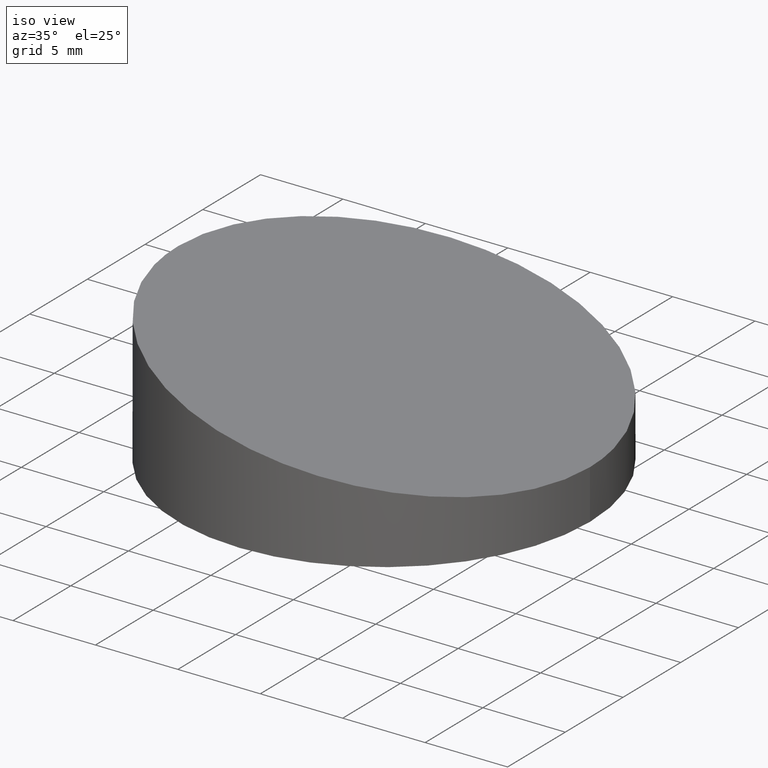
[diagram: clean part render]
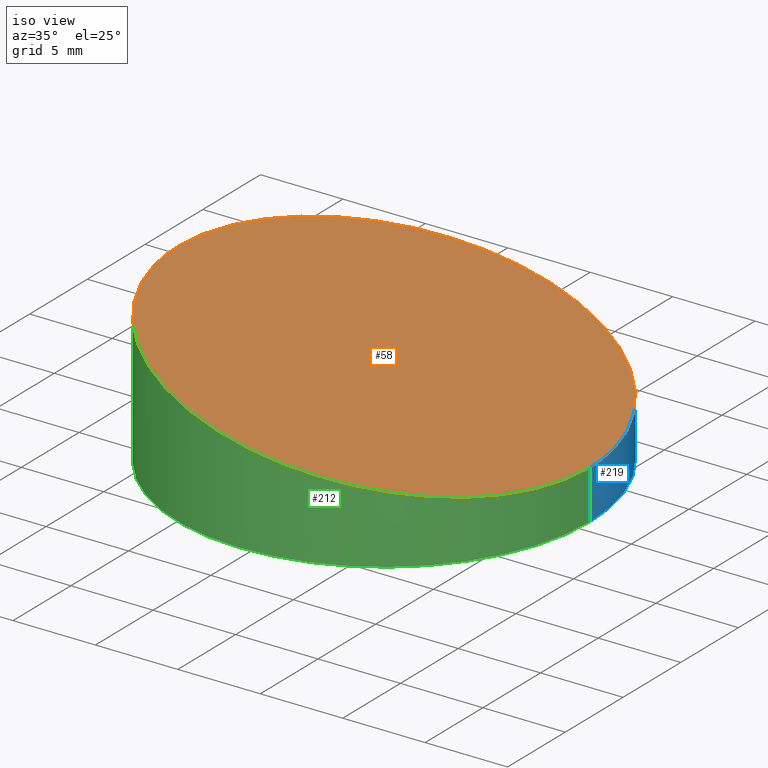
[diagram: same view with three faces highlighted in distinct colors, each labeled with its STEP entity id]
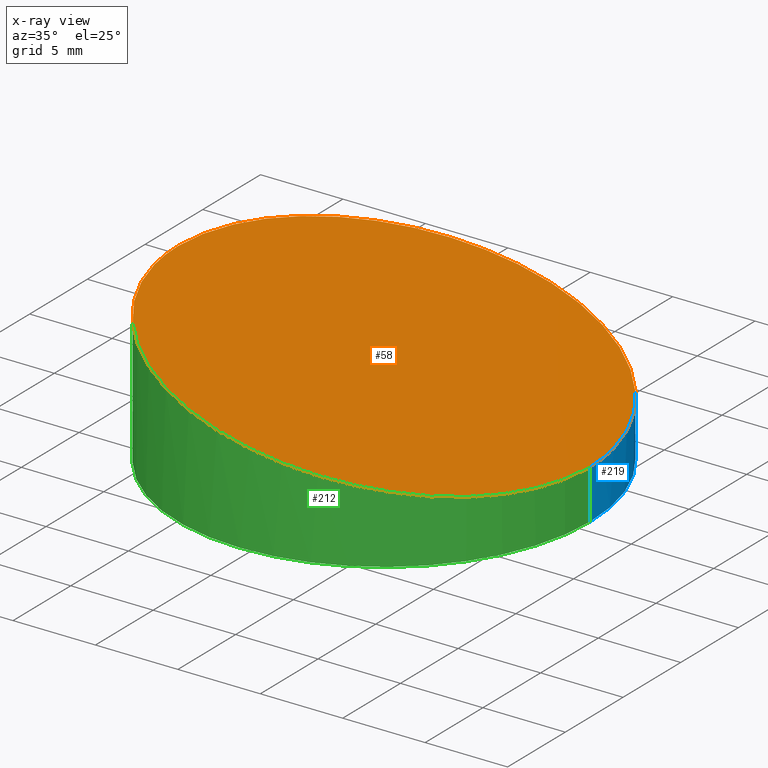
[diagram: x-ray of the same camera — body ghosted, the three highlighted faces saturated]
A machine part, iso view with three faces highlighted in distinct colors.
The next image is the same camera in x-ray (body ghosted, the three faces saturated) — at least one of them is partly hidden behind the body in this view.
Their STEP definitions:

[orange] entity #58 — the highlighted planar face has unit normal (-0.2122, 0, -0.9772).
#14 = DIRECTION ( 'NONE',  ( -0.2121776721564465600, 0.0000000000000000000, -0.9772311064626788600 ) ) ;
#16 = FACE_OUTER_BOUND ( 'NONE', #145, .T. ) ;
#30 = PLANE ( 'NONE',  #183 ) ;
#58 = ADVANCED_FACE ( 'NONE', ( #16 ), #30, .F. ) ;
#73 = CARTESIAN_POINT ( 'NONE',  ( -12.49999999999999600, 0.0000000000000000000, 8.428032088654909200 ) ) ;
#75 = CARTESIAN_POINT ( 'NONE',  ( -12.50000000000000500, 25.00000000000000000, 8.428032088654910900 ) ) ;
#77 = CARTESIAN_POINT ( 'NONE',  ( -12.49999999999999600, 0.0000000000000000000, 8.428032088654909200 ) ) ;
#95 = CARTESIAN_POINT ( 'NONE',  ( 12.49999999999999600, 1.530808498934191100E-015, 3.000000000000000000 ) ) ;
#120 = CARTESIAN_POINT ( 'NONE',  ( 12.49999999999999600, -25.00000000000000000, 3.000000000000000000 ) ) ;
#127 = VERTEX_POINT ( 'NONE', #175 ) ;
#137 = DIRECTION ( 'NONE',  ( -0.9772311064626787400, 0.0000000000000000000, 0.2121776721564465300 ) ) ;
#145 = EDGE_LOOP ( 'NONE', ( #248, #163 ) ) ;
#148 = EDGE_CURVE ( 'NONE', #173, #127, #198, .T. ) ;
#154 = CARTESIAN_POINT ( 'NONE',  ( -12.49999999999999600, 0.0000000000000000000, 8.428032088654909200 ) ) ;
#163 = ORIENTED_EDGE ( 'NONE', *, *, #210, .F. ) ;
#173 = VERTEX_POINT ( 'NONE', #154 ) ;
#175 = CARTESIAN_POINT ( 'NONE',  ( 12.49999999999999600, 1.530808498934191100E-015, 3.000000000000000000 ) ) ;
#183 = AXIS2_PLACEMENT_3D ( 'NONE', #120, #14, #137 ) ;
#197 = CARTESIAN_POINT ( 'NONE',  ( 12.50000000000000000, -25.00000000000000000, 3.000000000000000400 ) ) ;
#198 =( BOUNDED_CURVE ( )  B_SPLINE_CURVE ( 3, ( #73, #75, #251, #95 ),
 .UNSPECIFIED., .F., .F. ) 
 B_SPLINE_CURVE_WITH_KNOTS ( ( 4, 4 ),
 ( 3.141592653589793100, 6.283185307179586200 ),
 .UNSPECIFIED. ) 
 CURVE ( )  GEOMETRIC_REPRESENTATION_ITEM ( )  RATIONAL_B_SPLINE_CURVE ( ( 1.000000000000000000, 0.3333333333333333700, 0.3333333333333333700, 1.000000000000000000 ) ) 
 REPRESENTATION_ITEM ( '' )  );
#201 = CARTESIAN_POINT ( 'NONE',  ( -12.50000000000000000, -25.00000000000000000, 8.428032088654910900 ) ) ;
#210 = EDGE_CURVE ( 'NONE', #127, #173, #230, .T. ) ;
#214 = CARTESIAN_POINT ( 'NONE',  ( 12.49999999999999600, 1.530808498934191100E-015, 3.000000000000000000 ) ) ;
#230 =( BOUNDED_CURVE ( )  B_SPLINE_CURVE ( 3, ( #214, #197, #201, #77 ),
 .UNSPECIFIED., .F., .F. ) 
 B_SPLINE_CURVE_WITH_KNOTS ( ( 4, 4 ),
 ( 0.0000000000000000000, 3.141592653589793100 ),
 .UNSPECIFIED. ) 
 CURVE ( )  GEOMETRIC_REPRESENTATION_ITEM ( )  RATIONAL_B_SPLINE_CURVE ( ( 1.000000000000000000, 0.3333333333333333700, 0.3333333333333333700, 1.000000000000000000 ) ) 
 REPRESENTATION_ITEM ( '' )  );
#248 = ORIENTED_EDGE ( 'NONE', *, *, #148, .F. ) ;
#251 = CARTESIAN_POINT ( 'NONE',  ( 12.50000000000000000, 25.00000000000000000, 3.000000000000000400 ) ) ;

[blue] entity #219 — the highlighted cylindrical surface (partial cylindrical patch) has radius 12.5 mm, axis along (-0, -0, -1).
#17 = CARTESIAN_POINT ( 'NONE',  ( 12.49999999999999600, 1.530808498934191100E-015, 0.0000000000000000000 ) ) ;
#23 = CARTESIAN_POINT ( 'NONE',  ( 12.49999999999999600, 1.530808498934191100E-015, 10.00000000000000000 ) ) ;
#24 = VECTOR ( 'NONE', #67, 1000.000000000000000 ) ;
#26 = LINE ( 'NONE', #171, #79 ) ;
#33 = CYLINDRICAL_SURFACE ( 'NONE', #102, 12.49999999999999600 ) ;
#36 = LINE ( 'NONE', #23, #24 ) ;
#57 = CARTESIAN_POINT ( 'NONE',  ( 0.0000000000000000000, 0.0000000000000000000, 0.0000000000000000000 ) ) ;
#62 = DIRECTION ( 'NONE',  ( -1.000000000000000000, 0.0000000000000000000, 0.0000000000000000000 ) ) ;
#67 = DIRECTION ( 'NONE',  ( -0.0000000000000000000, -0.0000000000000000000, -1.000000000000000000 ) ) ;
#73 = CARTESIAN_POINT ( 'NONE',  ( -12.49999999999999600, 0.0000000000000000000, 8.428032088654909200 ) ) ;
#75 = CARTESIAN_POINT ( 'NONE',  ( -12.50000000000000500, 25.00000000000000000, 8.428032088654910900 ) ) ;
#79 = VECTOR ( 'NONE', #151, 1000.000000000000000 ) ;
#84 = EDGE_CURVE ( 'NONE', #173, #185, #26, .T. ) ;
#91 = AXIS2_PLACEMENT_3D ( 'NONE', #57, #195, #235 ) ;
#95 = CARTESIAN_POINT ( 'NONE',  ( 12.49999999999999600, 1.530808498934191100E-015, 3.000000000000000000 ) ) ;
#99 = ORIENTED_EDGE ( 'NONE', *, *, #233, .T. ) ;
#102 = AXIS2_PLACEMENT_3D ( 'NONE', #243, #178, #62 ) ;
#119 = VERTEX_POINT ( 'NONE', #17 ) ;
#123 = ORIENTED_EDGE ( 'NONE', *, *, #193, .T. ) ;
#127 = VERTEX_POINT ( 'NONE', #175 ) ;
#136 = FACE_OUTER_BOUND ( 'NONE', #242, .T. ) ;
#148 = EDGE_CURVE ( 'NONE', #173, #127, #198, .T. ) ;
#151 = DIRECTION ( 'NONE',  ( -0.0000000000000000000, -0.0000000000000000000, -1.000000000000000000 ) ) ;
#154 = CARTESIAN_POINT ( 'NONE',  ( -12.49999999999999600, 0.0000000000000000000, 8.428032088654909200 ) ) ;
#157 = ORIENTED_EDGE ( 'NONE', *, *, #84, .F. ) ;
#171 = CARTESIAN_POINT ( 'NONE',  ( -12.49999999999999600, 0.0000000000000000000, 10.00000000000000000 ) ) ;
#173 = VERTEX_POINT ( 'NONE', #154 ) ;
#175 = CARTESIAN_POINT ( 'NONE',  ( 12.49999999999999600, 1.530808498934191100E-015, 3.000000000000000000 ) ) ;
#178 = DIRECTION ( 'NONE',  ( -0.0000000000000000000, -0.0000000000000000000, -1.000000000000000000 ) ) ;
#185 = VERTEX_POINT ( 'NONE', #190 ) ;
#188 = CIRCLE ( 'NONE', #91, 12.49999999999999600 ) ;
#190 = CARTESIAN_POINT ( 'NONE',  ( -12.49999999999999600, 0.0000000000000000000, 0.0000000000000000000 ) ) ;
#193 = EDGE_CURVE ( 'NONE', #119, #185, #188, .T. ) ;
#195 = DIRECTION ( 'NONE',  ( 0.0000000000000000000, 0.0000000000000000000, 1.000000000000000000 ) ) ;
#196 = ORIENTED_EDGE ( 'NONE', *, *, #148, .T. ) ;
#198 =( BOUNDED_CURVE ( )  B_SPLINE_CURVE ( 3, ( #73, #75, #251, #95 ),
 .UNSPECIFIED., .F., .F. ) 
 B_SPLINE_CURVE_WITH_KNOTS ( ( 4, 4 ),
 ( 3.141592653589793100, 6.283185307179586200 ),
 .UNSPECIFIED. ) 
 CURVE ( )  GEOMETRIC_REPRESENTATION_ITEM ( )  RATIONAL_B_SPLINE_CURVE ( ( 1.000000000000000000, 0.3333333333333333700, 0.3333333333333333700, 1.000000000000000000 ) ) 
 REPRESENTATION_ITEM ( '' )  );
#219 = ADVANCED_FACE ( 'NONE', ( #136 ), #33, .T. ) ;
#233 = EDGE_CURVE ( 'NONE', #127, #119, #36, .T. ) ;
#235 = DIRECTION ( 'NONE',  ( 1.000000000000000000, 0.0000000000000000000, 0.0000000000000000000 ) ) ;
#242 = EDGE_LOOP ( 'NONE', ( #196, #99, #123, #157 ) ) ;
#243 = CARTESIAN_POINT ( 'NONE',  ( 0.0000000000000000000, 0.0000000000000000000, 10.00000000000000000 ) ) ;
#251 = CARTESIAN_POINT ( 'NONE',  ( 12.50000000000000000, 25.00000000000000000, 3.000000000000000400 ) ) ;

[green] entity #212 — the highlighted cylindrical surface (partial cylindrical patch) has radius 12.5 mm, axis along (-0, -0, -1).
#17 = CARTESIAN_POINT ( 'NONE',  ( 12.49999999999999600, 1.530808498934191100E-015, 0.0000000000000000000 ) ) ;
#23 = CARTESIAN_POINT ( 'NONE',  ( 12.49999999999999600, 1.530808498934191100E-015, 10.00000000000000000 ) ) ;
#24 = VECTOR ( 'NONE', #67, 1000.000000000000000 ) ;
#26 = LINE ( 'NONE', #171, #79 ) ;
#36 = LINE ( 'NONE', #23, #24 ) ;
#49 = ORIENTED_EDGE ( 'NONE', *, *, #233, .F. ) ;
#54 = CARTESIAN_POINT ( 'NONE',  ( 0.0000000000000000000, 0.0000000000000000000, 0.0000000000000000000 ) ) ;
#67 = DIRECTION ( 'NONE',  ( -0.0000000000000000000, -0.0000000000000000000, -1.000000000000000000 ) ) ;
#68 = EDGE_LOOP ( 'NONE', ( #49, #181, #92, #166 ) ) ;
#71 = AXIS2_PLACEMENT_3D ( 'NONE', #253, #236, #122 ) ;
#77 = CARTESIAN_POINT ( 'NONE',  ( -12.49999999999999600, 0.0000000000000000000, 8.428032088654909200 ) ) ;
#79 = VECTOR ( 'NONE', #151, 1000.000000000000000 ) ;
#84 = EDGE_CURVE ( 'NONE', #173, #185, #26, .T. ) ;
#92 = ORIENTED_EDGE ( 'NONE', *, *, #84, .T. ) ;
#97 = DIRECTION ( 'NONE',  ( 0.0000000000000000000, 0.0000000000000000000, 1.000000000000000000 ) ) ;
#115 = CIRCLE ( 'NONE', #170, 12.49999999999999600 ) ;
#119 = VERTEX_POINT ( 'NONE', #17 ) ;
#122 = DIRECTION ( 'NONE',  ( -1.000000000000000000, 0.0000000000000000000, 0.0000000000000000000 ) ) ;
#127 = VERTEX_POINT ( 'NONE', #175 ) ;
#151 = DIRECTION ( 'NONE',  ( -0.0000000000000000000, -0.0000000000000000000, -1.000000000000000000 ) ) ;
#154 = CARTESIAN_POINT ( 'NONE',  ( -12.49999999999999600, 0.0000000000000000000, 8.428032088654909200 ) ) ;
#166 = ORIENTED_EDGE ( 'NONE', *, *, #189, .T. ) ;
#170 = AXIS2_PLACEMENT_3D ( 'NONE', #54, #97, #234 ) ;
#171 = CARTESIAN_POINT ( 'NONE',  ( -12.49999999999999600, 0.0000000000000000000, 10.00000000000000000 ) ) ;
#173 = VERTEX_POINT ( 'NONE', #154 ) ;
#175 = CARTESIAN_POINT ( 'NONE',  ( 12.49999999999999600, 1.530808498934191100E-015, 3.000000000000000000 ) ) ;
#181 = ORIENTED_EDGE ( 'NONE', *, *, #210, .T. ) ;
#185 = VERTEX_POINT ( 'NONE', #190 ) ;
#189 = EDGE_CURVE ( 'NONE', #185, #119, #115, .T. ) ;
#190 = CARTESIAN_POINT ( 'NONE',  ( -12.49999999999999600, 0.0000000000000000000, 0.0000000000000000000 ) ) ;
#197 = CARTESIAN_POINT ( 'NONE',  ( 12.50000000000000000, -25.00000000000000000, 3.000000000000000400 ) ) ;
#201 = CARTESIAN_POINT ( 'NONE',  ( -12.50000000000000000, -25.00000000000000000, 8.428032088654910900 ) ) ;
#210 = EDGE_CURVE ( 'NONE', #127, #173, #230, .T. ) ;
#212 = ADVANCED_FACE ( 'NONE', ( #216 ), #238, .T. ) ;
#214 = CARTESIAN_POINT ( 'NONE',  ( 12.49999999999999600, 1.530808498934191100E-015, 3.000000000000000000 ) ) ;
#216 = FACE_OUTER_BOUND ( 'NONE', #68, .T. ) ;
#230 =( BOUNDED_CURVE ( )  B_SPLINE_CURVE ( 3, ( #214, #197, #201, #77 ),
 .UNSPECIFIED., .F., .F. ) 
 B_SPLINE_CURVE_WITH_KNOTS ( ( 4, 4 ),
 ( 0.0000000000000000000, 3.141592653589793100 ),
 .UNSPECIFIED. ) 
 CURVE ( )  GEOMETRIC_REPRESENTATION_ITEM ( )  RATIONAL_B_SPLINE_CURVE ( ( 1.000000000000000000, 0.3333333333333333700, 0.3333333333333333700, 1.000000000000000000 ) ) 
 REPRESENTATION_ITEM ( '' )  );
#233 = EDGE_CURVE ( 'NONE', #127, #119, #36, .T. ) ;
#234 = DIRECTION ( 'NONE',  ( 1.000000000000000000, 0.0000000000000000000, 0.0000000000000000000 ) ) ;
#236 = DIRECTION ( 'NONE',  ( -0.0000000000000000000, -0.0000000000000000000, -1.000000000000000000 ) ) ;
#238 = CYLINDRICAL_SURFACE ( 'NONE', #71, 12.49999999999999600 ) ;
#253 = CARTESIAN_POINT ( 'NONE',  ( 0.0000000000000000000, 0.0000000000000000000, 10.00000000000000000 ) ) ;